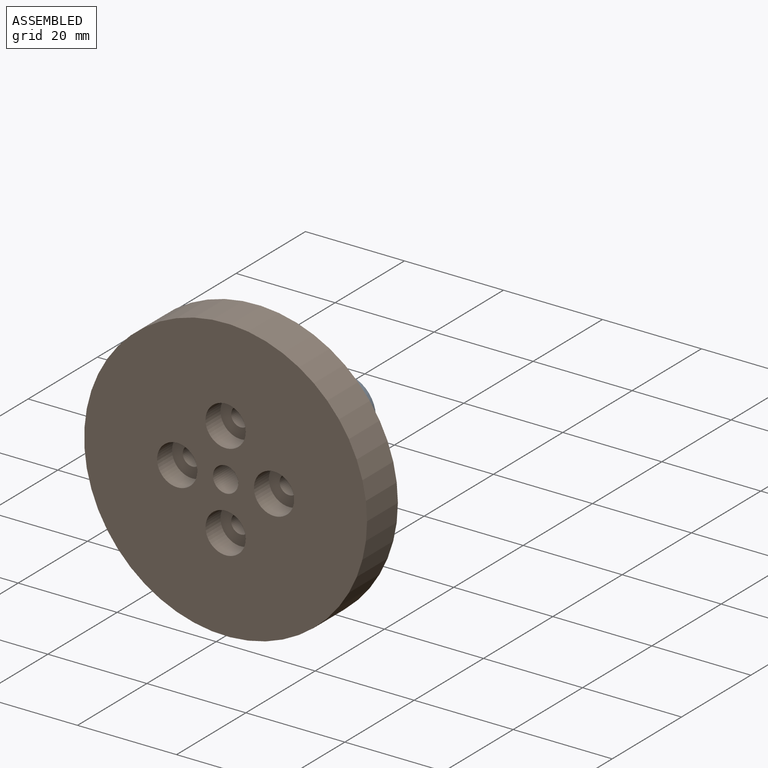
[diagram: assembled view]
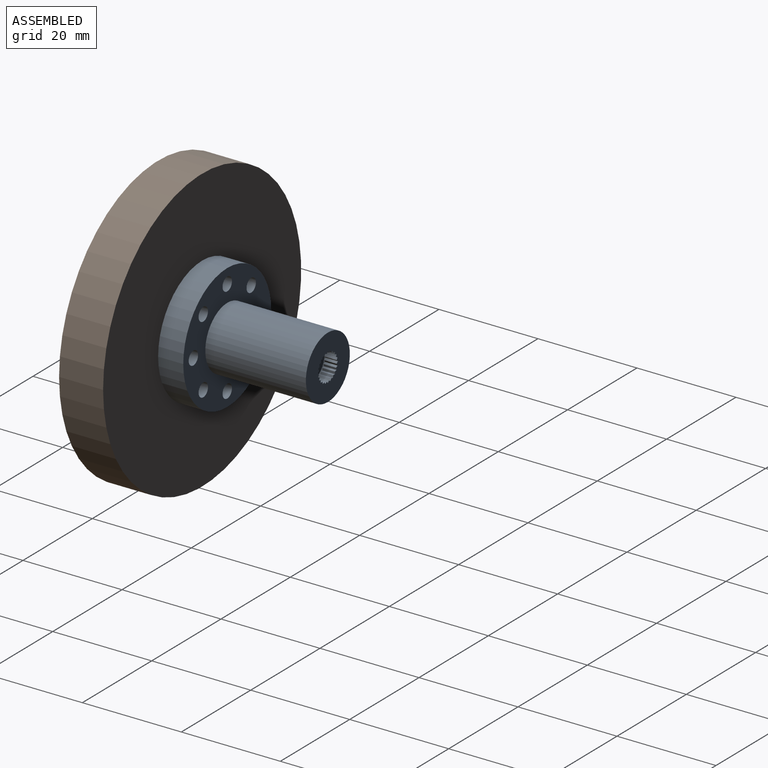
[diagram: assembled view, second angle]
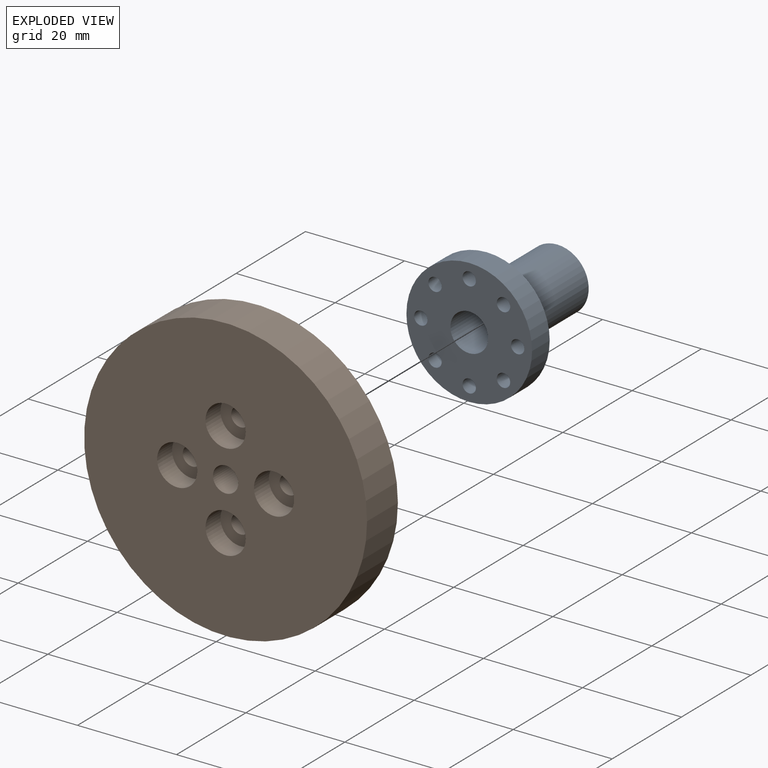
[diagram: exploded view]
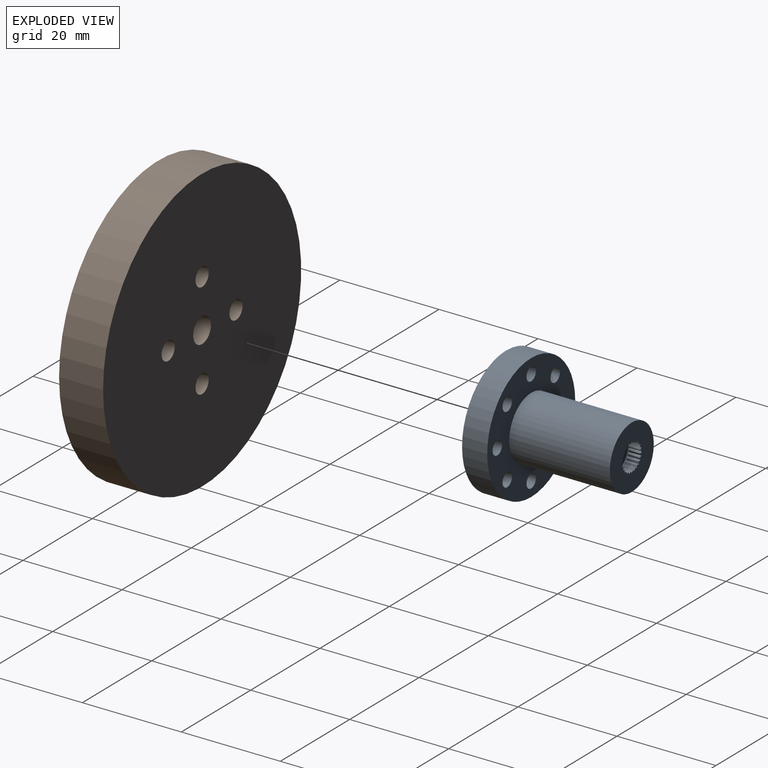
[diagram: exploded view, second angle]
ASSEMBLY  parts=2 mates=2
PART A: 67 faces, bbox 25.4x25.4x25.4 mm
  f0: cylinder r=3.26mm len=6.52mm, axis (0,1,0), area 10.4mm2, adj f17,f66
  f1: cylinder r=1.5mm len=3mm, axis (0,1,0), area 12mm2, adj f16,f17
  f2: cylinder r=3.81mm len=21.08mm, axis (0,-1,0), area 504.7mm2, adj f14,f16
  f3: cylinder r=6.35mm len=20.32mm, axis (0,-1,0), area 810.2mm2, adj f13,f15
  f4: cylinder r=1.35mm len=5.08mm, axis (0,1,0), area 43.2mm2, adj f13,f14
  f5: cylinder r=1.35mm len=5.08mm, axis (0,1,0), area 43.2mm2, adj f13,f14
  f6: cylinder r=1.35mm len=5.08mm, axis (0,1,0), area 43.2mm2, adj f13,f14
  f7: cylinder r=1.35mm len=5.08mm, axis (0,1,0), area 43.2mm2, adj f13,f14
  f8: cylinder r=1.35mm len=5.08mm, axis (0,1,0), area 43.2mm2, adj f13,f14
  f9: cylinder r=1.35mm len=5.08mm, axis (0,1,0), area 43.2mm2, adj f13,f14
  f10: cylinder r=1.35mm len=5.08mm, axis (0,1,0), area 43.2mm2, adj f13,f14
  f11: cylinder r=1.35mm len=5.08mm, axis (0,1,0), area 43.2mm2, adj f13,f14
  f12: cylinder r=12.7mm len=25.39mm, axis (0,-1,0), area 405.2mm2, adj f13,f14
  f13: plane 25.39x25.39mm, normal (0,1,0), area 333.9mm2, adj f3,f4,f5,f6,f7,f8,f9,f10
  f14: plane 25.39x25.39mm, normal (0,-1,0), area 414.8mm2, adj f2,f4,f5,f6,f7,f8,f9,f10
  f15: plane 12.69x12.69mm, normal (0,1,0), area 103.4mm2, adj f3,f18,f19,f20,f21,f22,f23,f24
  f16: plane 7.62x7.62mm, normal (0,-1,0), area 38.5mm2, adj f1,f2
  f17: plane 6.52x6.52mm, normal (0,1,0), area 26.3mm2, adj f0,f1
  f18: plane 2.54x0.41mm, normal (-0.86,0,-0.5), area 1.2mm2, adj f15,f19,f65,f66
  f19: plane 2.54x0.34mm, normal (-0.7,0,0.71), area 1.2mm2, adj f15,f18,f20,f66
  f20: plane 2.54x0.34mm, normal (-0.7,0,-0.71), area 1.2mm2, adj f15,f19,f21,f66
  f21: plane 2.54x0.41mm, normal (-0.86,0,0.5), area 1.2mm2, adj f15,f20,f22,f66
  f22: plane 2.54x0.41mm, normal (-0.5,0,-0.87), area 1.2mm2, adj f15,f21,f23,f66
  f23: plane 2.54x0.46mm, normal (-0.97,0,0.26), area 1.2mm2, adj f15,f22,f24,f66
  f24: plane 2.54x0.46mm, normal (-0.26,0,-0.97), area 1.2mm2, adj f15,f23,f25,f66
  f25: plane 2.54x0.48mm, normal (-1,0,0), area 1.2mm2, adj f15,f24,f26,f66
  f26: plane 2.54x0.48mm, normal (0,0,-1), area 1.2mm2, adj f15,f25,f27,f66
  f27: plane 2.54x0.46mm, normal (-0.97,0,-0.26), area 1.2mm2, adj f15,f26,f28,f66
  f28: plane 2.54x0.46mm, normal (0.26,0,-0.97), area 1.2mm2, adj f15,f27,f29,f66
  f29: plane 2.54x0.41mm, normal (-0.87,0,-0.5), area 1.2mm2, adj f15,f28,f30,f66
  f30: plane 2.54x0.41mm, normal (0.5,0,-0.86), area 1.2mm2, adj f15,f29,f31,f66
  f31: plane 2.54x0.34mm, normal (-0.71,0,-0.7), area 1.2mm2, adj f15,f30,f32,f66
  f32: plane 2.54x0.34mm, normal (0.71,0,-0.7), area 1.2mm2, adj f15,f31,f33,f66
  f33: plane 2.54x0.41mm, normal (-0.5,0,-0.86), area 1.2mm2, adj f15,f32,f34,f66
  f34: plane 2.54x0.41mm, normal (0.87,0,-0.5), area 1.2mm2, adj f15,f33,f35,f66
  f35: plane 2.54x0.46mm, normal (-0.26,0,-0.97), area 1.2mm2, adj f15,f34,f36,f66
  f36: plane 2.54x0.46mm, normal (0.97,0,-0.26), area 1.2mm2, adj f15,f35,f37,f66
  f37: plane 2.54x0.48mm, normal (0,0,-1), area 1.2mm2, adj f15,f36,f38,f66
  f38: plane 2.54x0.48mm, normal (1,0,0), area 1.2mm2, adj f15,f37,f39,f66
  f39: plane 2.54x0.46mm, normal (0.26,0,-0.97), area 1.2mm2, adj f15,f38,f40,f66
  f40: plane 2.54x0.46mm, normal (0.97,0,0.26), area 1.2mm2, adj f15,f39,f41,f66
  f41: plane 2.54x0.41mm, normal (0.5,0,-0.87), area 1.2mm2, adj f15,f40,f42,f66
  f42: plane 2.54x0.41mm, normal (0.86,0,0.5), area 1.2mm2, adj f15,f41,f43,f66
  f43: plane 2.54x0.34mm, normal (0.7,0,-0.71), area 1.2mm2, adj f15,f42,f44,f66
  f44: plane 2.54x0.34mm, normal (0.7,0,0.71), area 1.2mm2, adj f15,f43,f45,f66
  f45: plane 2.54x0.41mm, normal (0.86,0,-0.5), area 1.2mm2, adj f15,f44,f46,f66
  f46: plane 2.54x0.41mm, normal (0.5,0,0.87), area 1.2mm2, adj f15,f45,f47,f66
  f47: plane 2.54x0.46mm, normal (0.97,0,-0.26), area 1.2mm2, adj f15,f46,f48,f66
  f48: plane 2.54x0.46mm, normal (0.26,0,0.97), area 1.2mm2, adj f15,f47,f49,f66
  f49: plane 2.54x0.48mm, normal (1,0,0), area 1.2mm2, adj f15,f48,f50,f66
  f50: plane 2.54x0.48mm, normal (0,0,1), area 1.2mm2, adj f15,f49,f51,f66
  f51: plane 2.54x0.46mm, normal (0.97,0,0.26), area 1.2mm2, adj f15,f50,f52,f66
  f52: plane 2.54x0.46mm, normal (-0.26,0,0.97), area 1.2mm2, adj f15,f51,f53,f66
  f53: plane 2.54x0.41mm, normal (0.87,0,0.5), area 1.2mm2, adj f15,f52,f54,f66
  f54: plane 2.54x0.41mm, normal (-0.5,0,0.86), area 1.2mm2, adj f15,f53,f55,f66
  f55: plane 2.54x0.34mm, normal (0.71,0,0.7), area 1.2mm2, adj f15,f54,f56,f66
  f56: plane 2.54x0.34mm, normal (-0.71,0,0.7), area 1.2mm2, adj f15,f55,f57,f66
  f57: plane 2.54x0.41mm, normal (0.5,0,0.86), area 1.2mm2, adj f15,f56,f58,f66
  f58: plane 2.54x0.41mm, normal (-0.87,0,0.5), area 1.2mm2, adj f15,f57,f59,f66
  f59: plane 2.54x0.46mm, normal (0.26,0,0.97), area 1.2mm2, adj f15,f58,f60,f66
  f60: plane 2.54x0.46mm, normal (-0.97,0,0.26), area 1.2mm2, adj f15,f59,f61,f66
  f61: plane 2.54x0.48mm, normal (0,0,1), area 1.2mm2, adj f15,f60,f62,f66
  f62: plane 2.54x0.48mm, normal (-1,0,0), area 1.2mm2, adj f15,f61,f63,f66
  f63: plane 2.54x0.46mm, normal (-0.26,0,0.97), area 1.2mm2, adj f15,f62,f64,f66
  f64: plane 2.54x0.46mm, normal (-0.97,0,-0.26), area 1.2mm2, adj f15,f63,f65,f66
  f65: plane 2.54x0.41mm, normal (-0.5,0,0.87), area 1.2mm2, adj f15,f18,f64,f66
  f66: plane 6.52x6.52mm, normal (0,-1,0), area 10.3mm2, adj f0,f18,f19,f20,f21,f22,f23,f24
PART B: 16 faces, bbox 57.2x57.2x8.9 mm
  f0: cylinder r=1.9mm len=4.57mm, axis (0,0,-1), area 54.5mm2, adj f1,f2
  f1: plane 8.13x8.13mm, normal (0,0,1), area 40.6mm2, adj f0,f3
  f2: plane 57.15x57.15mm, normal (0,0,-1), area 2499.4mm2, adj f0,f4,f7,f10,f13,f14
  f3: cylinder r=4.06mm len=8.13mm, axis (0,0,-1), area 110.3mm2, adj f1,f15
  f4: cylinder r=1.9mm len=4.57mm, axis (0,0,-1), area 54.5mm2, adj f2,f5
  f5: plane 8.13x8.13mm, normal (0,0,1), area 40.6mm2, adj f4,f6
  f6: cylinder r=4.06mm len=8.13mm, axis (0,0,-1), area 110.3mm2, adj f5,f15
  f7: cylinder r=1.9mm len=4.57mm, axis (0,0,-1), area 54.5mm2, adj f2,f8
  f8: plane 8.13x8.13mm, normal (0,0,1), area 40.6mm2, adj f7,f9
  f9: cylinder r=4.06mm len=8.13mm, axis (0,0,-1), area 110.3mm2, adj f8,f15
  f10: cylinder r=1.9mm len=4.57mm, axis (0,0,-1), area 54.5mm2, adj f2,f11
  f11: plane 8.13x8.13mm, normal (0,0,1), area 40.6mm2, adj f10,f12
  f12: cylinder r=4.06mm len=8.13mm, axis (0,0,-1), area 110.3mm2, adj f11,f15
  f13: cylinder r=2.55mm len=8.89mm, axis (0,0,-1), area 142.6mm2, adj f2,f15
  f14: cylinder r=28.57mm len=57.15mm, axis (0,0,-1), area 1596.1mm2, adj f2,f15
  f15: plane 57.15x57.15mm, normal (0,0,1), area 2337.2mm2, adj f3,f6,f9,f12,f13,f14
PLACE A t=(21.61,9.32,19.5)mm
PLACE B rot(axis=(1,0,0),90deg) t=(21.61,9.32,19.5)mm
MATE cylindrical A.f9 <-> B.f7  axis (0,-1,0) through (21.61,9.32,9.72)mm
MATE cylindrical A.f5 <-> B.f0  axis (0,-1,0) through (21.61,9.32,29.28)mm
